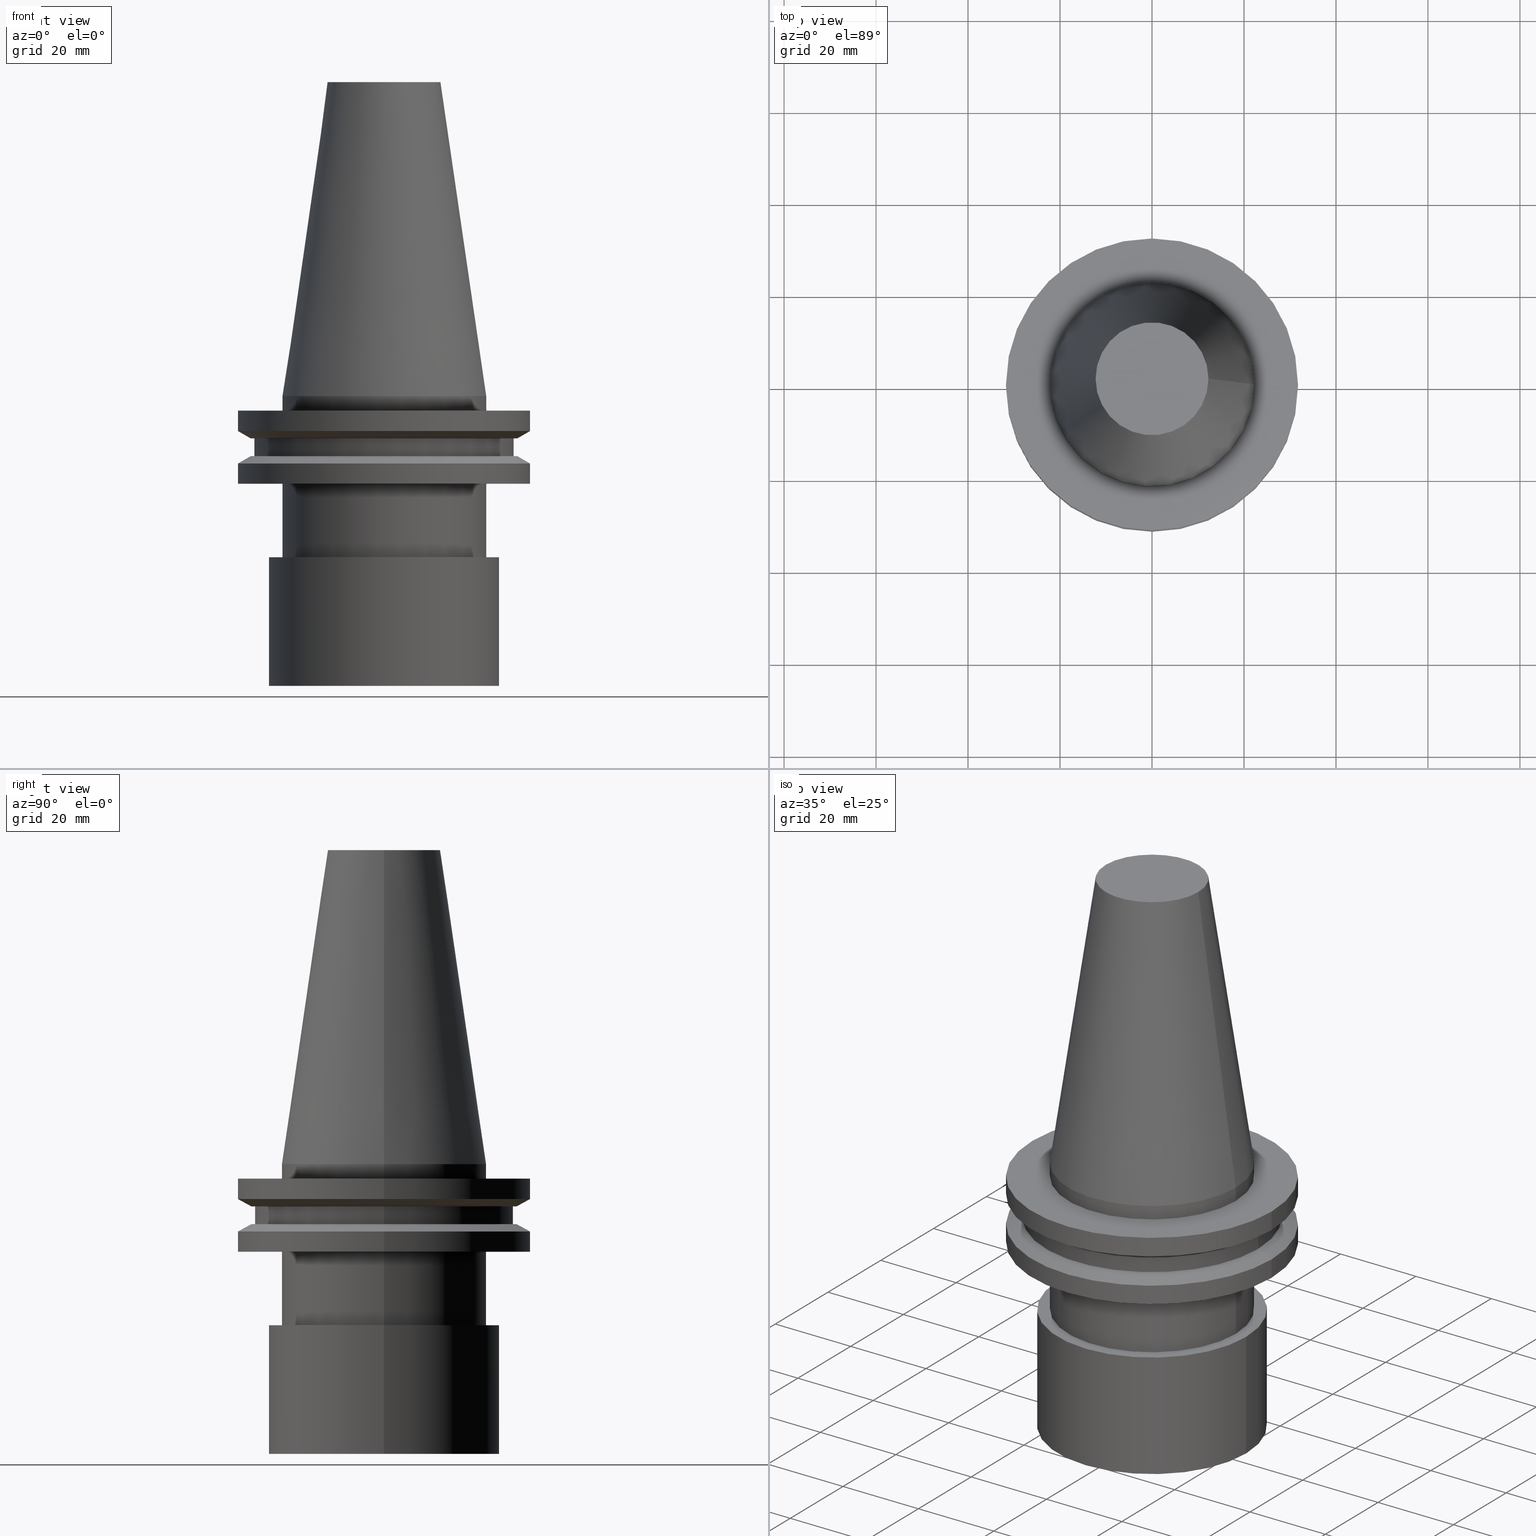
[diagram: canonical four-view strip — front | top / right | iso, engineering-drawing reading convention]
A machine part, canonical four-view strip (front | top / right | iso — engineering-drawing reading convention). The complete STEP part file that produces these views, byte-faithful:
ISO-10303-21;
HEADER;
FILE_DESCRIPTION (( 'STEP AP203' ),
    '1' );
FILE_NAME ('11.326.851.stp',
    '2022-03-09T15:06:53',
    ( '' ),
    ( '' ),
    'SwSTEP 2.0',
    'SolidWorks 2021',
    '' );
FILE_SCHEMA (( 'CONFIG_CONTROL_DESIGN' ));
ENDSEC;

DATA;
#1 = VERTEX_POINT ( 'NONE', #59 ) ;
#2 = VERTEX_POINT ( 'NONE', #281 ) ;
#3 = PLANE ( 'NONE',  #331 ) ;
#4 = ORIENTED_EDGE ( 'NONE', *, *, #256, .T. ) ;
#5 = AXIS2_PLACEMENT_3D ( 'NONE', #165, #194, #306 ) ;
#6 = CARTESIAN_POINT ( 'NONE',  ( 0.000000000000000000, 0.000000000000000000, 68.25000000000000000 ) ) ;
#7 = ADVANCED_FACE ( 'NONE', ( #39, #158 ), #13, .T. ) ;
#8 = DIRECTION ( 'NONE',  ( -1.000000000000000000, 0.000000000000000000, 0.000000000000000000 ) ) ;
#9 = CARTESIAN_POINT ( 'NONE',  ( 0.000000000000000000, 0.000000000000000000, 0.000000000000000000 ) ) ;
#10 =( NAMED_UNIT ( * ) PLANE_ANGLE_UNIT ( ) SI_UNIT ( $, .RADIAN. ) );
#11 = EDGE_LOOP ( 'NONE', ( #348 ) ) ;
#12 = DIRECTION ( 'NONE',  ( 1.000000000000000000, 0.000000000000000000, 0.000000000000000000 ) ) ;
#13 = CYLINDRICAL_SURFACE ( 'NONE', #388, 28.17999999999999972 ) ;
#14 = CARTESIAN_POINT ( 'NONE',  ( 0.000000000000000000, 0.000000000000000000, -13.05499999999999794 ) ) ;
#15 = DIRECTION ( 'NONE',  ( 1.000000000000000000, 0.000000000000000000, 0.000000000000000000 ) ) ;
#16 = EDGE_CURVE ( 'NONE', #26, #26, #93, .T. ) ;
#17 = SECURITY_CLASSIFICATION ( '', '', #338 ) ;
#18 = FACE_OUTER_BOUND ( 'NONE', #280, .T. ) ;
#19 = EDGE_LOOP ( 'NONE', ( #322 ) ) ;
#20 = PERSON_AND_ORGANIZATION ( #37, #111 ) ;
#21 = ADVANCED_FACE ( 'NONE', ( #32, #186 ), #218, .T. ) ;
#22 = CARTESIAN_POINT ( 'NONE',  ( 0.000000000000000000, 0.000000000000000000, -13.05499999999999794 ) ) ;
#23 =( NAMED_UNIT ( * ) SI_UNIT ( $, .STERADIAN. ) SOLID_ANGLE_UNIT ( ) );
#24 = FACE_OUTER_BOUND ( 'NONE', #201, .T. ) ;
#25 = CIRCLE ( 'NONE', #311, 31.74999999999999289 ) ;
#26 = VERTEX_POINT ( 'NONE', #51 ) ;
#27 = FACE_OUTER_BOUND ( 'NONE', #171, .T. ) ;
#28 = DIRECTION ( 'NONE',  ( -0.000000000000000000, -0.000000000000000000, 1.000000000000000000 ) ) ;
#29 = AXIS2_PLACEMENT_3D ( 'NONE', #146, #120, #324 ) ;
#30 = APPROVAL_ROLE ( '' ) ;
#31 = AXIS2_PLACEMENT_3D ( 'NONE', #150, #342, #394 ) ;
#32 = FACE_BOUND ( 'NONE', #65, .T. ) ;
#33 = DIRECTION ( 'NONE',  ( 0.000000000000000000, 0.000000000000000000, -1.000000000000000000 ) ) ;
#34 = APPROVAL_STATUS ( 'not_yet_approved' ) ;
#35 = EDGE_LOOP ( 'NONE', ( #240 ) ) ;
#36 = CYLINDRICAL_SURFACE ( 'NONE', #172, 31.75000000000000000 ) ;
#37 = PERSON ( 'UNSPECIFIED', 'UNSPECIFIED', 'UNSPECIFIED', ('UNSPECIFIED'), ('UNSPECIFIED'), ('UNSPECIFIED') ) ;
#38 = AXIS2_PLACEMENT_3D ( 'NONE', #378, #28, #210 ) ;
#39 = FACE_OUTER_BOUND ( 'NONE', #370, .T. ) ;
#40 = AXIS2_PLACEMENT_3D ( 'NONE', #118, #347, #61 ) ;
#41 = APPROVAL_PERSON_ORGANIZATION ( #216, #238, #30 ) ;
#42 = DIRECTION ( 'NONE',  ( -0.000000000000000000, -0.000000000000000000, 1.000000000000000000 ) ) ;
#43 = DIRECTION ( 'NONE',  ( -0.000000000000000000, -0.000000000000000000, 1.000000000000000000 ) ) ;
#44 = AXIS2_PLACEMENT_3D ( 'NONE', #211, #274, #170 ) ;
#45 = DIRECTION ( 'NONE',  ( -0.000000000000000000, -0.000000000000000000, 1.000000000000000000 ) ) ;
#46 = COORDINATED_UNIVERSAL_TIME_OFFSET ( 6, 0, .BEHIND. ) ;
#47 = CARTESIAN_POINT ( 'NONE',  ( 0.000000000000000000, 0.000000000000000000, -35.04999999999999716 ) ) ;
#48 = COORDINATED_UNIVERSAL_TIME_OFFSET ( 6, 0, .BEHIND. ) ;
#49 = PLANE ( 'NONE',  #196 ) ;
#50 = ADVANCED_FACE ( 'NONE', ( #60, #178 ), #36, .T. ) ;
#51 = CARTESIAN_POINT ( 'NONE',  ( 22.22500000000000142, 0.000000000000000000, -3.174999999999997158 ) ) ;
#52 = ADVANCED_FACE ( 'NONE', ( #253, #316 ), #276, .T. ) ;
#53 = CIRCLE ( 'NONE', #287, 22.22500000000000142 ) ;
#54 = DIRECTION ( 'NONE',  ( 1.000000000000000000, 0.000000000000000000, 0.000000000000000000 ) ) ;
#55 = EDGE_LOOP ( 'NONE', ( #291 ) ) ;
#56 = DIRECTION ( 'NONE',  ( -1.000000000000000000, 0.000000000000000000, -0.000000000000000000 ) ) ;
#57 = ORIENTED_EDGE ( 'NONE', *, *, #16, .F. ) ;
#58 = FACE_BOUND ( 'NONE', #92, .T. ) ;
#59 = CARTESIAN_POINT ( 'NONE',  ( 24.99999999999999289, 0.000000000000000000, -63.00000000000000000 ) ) ;
#60 = FACE_OUTER_BOUND ( 'NONE', #89, .T. ) ;
#61 = DIRECTION ( 'NONE',  ( 1.000000000000000000, 0.000000000000000000, 0.000000000000000000 ) ) ;
#62 = CIRCLE ( 'NONE', #110, 28.17999999999999972 ) ;
#63 =( GEOMETRIC_REPRESENTATION_CONTEXT ( 3 ) GLOBAL_UNCERTAINTY_ASSIGNED_CONTEXT ( ( #258 ) ) GLOBAL_UNIT_ASSIGNED_CONTEXT ( ( #305, #10, #23 ) ) REPRESENTATION_CONTEXT ( 'NONE', 'WORKASPACE' ) );
#64 = ORIENTED_EDGE ( 'NONE', *, *, #16, .T. ) ;
#65 = EDGE_LOOP ( 'NONE', ( #246 ) ) ;
#66 = DIRECTION ( 'NONE',  ( 1.000000000000000000, 0.000000000000000000, 0.000000000000000000 ) ) ;
#67 = CARTESIAN_POINT ( 'NONE',  ( 28.97919780457008088, 0.000000000000000000, -13.05499999999999794 ) ) ;
#68 = CLOSED_SHELL ( 'NONE', ( #21, #223, #101, #252, #50, #336, #284, #7, #266, #387, #174, #350, #212, #236, #52, #126 ) ) ;
#69 = CYLINDRICAL_SURFACE ( 'NONE', #181, 22.22500000000000142 ) ;
#70 = AXIS2_PLACEMENT_3D ( 'NONE', #47, #303, #264 ) ;
#71 = DIRECTION ( 'NONE',  ( 1.000000000000000000, 0.000000000000000000, 0.000000000000000000 ) ) ;
#72 = APPLICATION_CONTEXT ( 'configuration controlled 3d designs of mechanical parts and assemblies' ) ;
#73 = VERTEX_POINT ( 'NONE', #164 ) ;
#74 = AXIS2_PLACEMENT_3D ( 'NONE', #82, #191, #100 ) ;
#75 = AXIS2_PLACEMENT_3D ( 'NONE', #310, #85, #206 ) ;
#76 = CYLINDRICAL_SURFACE ( 'NONE', #359, 22.22500000000000142 ) ;
#77 = EDGE_CURVE ( 'NONE', #144, #144, #87, .T. ) ;
#78 = DIRECTION ( 'NONE',  ( 0.000000000000000000, 0.000000000000000000, 1.000000000000000000 ) ) ;
#79 = DIRECTION ( 'NONE',  ( -0.000000000000000000, -0.000000000000000000, 1.000000000000000000 ) ) ;
#80 = APPLICATION_CONTEXT ( 'configuration controlled 3d designs of mechanical parts and assemblies' ) ;
#81 = CC_DESIGN_APPROVAL ( #261, ( #202 ) ) ;
#82 = CARTESIAN_POINT ( 'NONE',  ( 0.000000000000000000, 0.000000000000000000, 68.25000000000000000 ) ) ;
#83 = EDGE_CURVE ( 'NONE', #2, #2, #318, .T. ) ;
#84 = EDGE_CURVE ( 'NONE', #358, #358, #230, .T. ) ;
#85 = DIRECTION ( 'NONE',  ( -0.000000000000000000, -0.000000000000000000, 1.000000000000000000 ) ) ;
#86 = EDGE_LOOP ( 'NONE', ( #128 ) ) ;
#87 = CIRCLE ( 'NONE', #326, 31.75000000000000000 ) ;
#88 = CIRCLE ( 'NONE', #288, 28.97919780457007732 ) ;
#89 = EDGE_LOOP ( 'NONE', ( #273 ) ) ;
#90 = CARTESIAN_POINT ( 'NONE',  ( 0.000000000000000000, 0.000000000000000000, 0.000000000000000000 ) ) ;
#91 = CARTESIAN_POINT ( 'NONE',  ( 0.000000000000000000, 0.000000000000000000, 0.000000000000000000 ) ) ;
#92 = EDGE_LOOP ( 'NONE', ( #313 ) ) ;
#93 = CIRCLE ( 'NONE', #38, 22.22500000000000142 ) ;
#94 = EDGE_CURVE ( 'NONE', #292, #292, #147, .T. ) ;
#95 = ORIENTED_EDGE ( 'NONE', *, *, #256, .F. ) ;
#96 = EDGE_LOOP ( 'NONE', ( #392 ) ) ;
#97 = CARTESIAN_POINT ( 'NONE',  ( 28.17999999999999972, 0.000000000000000000, -13.05499999999999794 ) ) ;
#98 = DIRECTION ( 'NONE',  ( 0.000000000000000000, -0.000000000000000000, 1.000000000000000000 ) ) ;
#99 = PLANE ( 'NONE',  #225 ) ;
#100 = DIRECTION ( 'NONE',  ( 1.000000000000000000, 0.000000000000000000, 0.000000000000000000 ) ) ;
#101 = ADVANCED_FACE ( 'NONE', ( #24, #357 ), #69, .T. ) ;
#102 = AXIS2_PLACEMENT_3D ( 'NONE', #341, #278, #8 ) ;
#103 = PRODUCT_DEFINITION ( 'UNKNOWN', '', #202, #371 ) ;
#104 = FACE_OUTER_BOUND ( 'NONE', #346, .T. ) ;
#105 = PERSON_AND_ORGANIZATION_ROLE ( 'creator' ) ;
#106 = CARTESIAN_POINT ( 'NONE',  ( 0.000000000000000000, 0.000000000000000000, -9.204999999999991189 ) ) ;
#107 = CC_DESIGN_DATE_AND_TIME_ASSIGNMENT ( #290, #293, ( #17 ) ) ;
#108 = ORIENTED_EDGE ( 'NONE', *, *, #192, .T. ) ;
#109 = CARTESIAN_POINT ( 'NONE',  ( 31.75000000000000000, 0.000000000000000000, -7.605276606597335842 ) ) ;
#110 = AXIS2_PLACEMENT_3D ( 'NONE', #106, #141, #232 ) ;
#111 = ORGANIZATION ( 'UNSPECIFIED', 'UNSPECIFIED', '' ) ;
#112 = CARTESIAN_POINT ( 'NONE',  ( 0.000000000000000000, 0.000000000000000000, 68.25000000000000000 ) ) ;
#113 = DIRECTION ( 'NONE',  ( 1.000000000000000000, 0.000000000000000000, 0.000000000000000000 ) ) ;
#114 = ORIENTED_EDGE ( 'NONE', *, *, #382, .T. ) ;
#115 = DIRECTION ( 'NONE',  ( 0.000000000000000000, 0.000000000000000000, -1.000000000000000000 ) ) ;
#116 = ORIENTED_EDGE ( 'NONE', *, *, #83, .T. ) ;
#117 = EDGE_CURVE ( 'NONE', #380, #380, #142, .T. ) ;
#118 = CARTESIAN_POINT ( 'NONE',  ( 0.000000000000000000, 0.000000000000000000, -7.605276606597335842 ) ) ;
#119 = COORDINATED_UNIVERSAL_TIME_OFFSET ( 6, 0, .BEHIND. ) ;
#120 = DIRECTION ( 'NONE',  ( 0.000000000000000000, 0.000000000000000000, -1.000000000000000000 ) ) ;
#121 = FACE_BOUND ( 'NONE', #312, .T. ) ;
#122 = DATE_TIME_ROLE ( 'creation_date' ) ;
#123 = EDGE_LOOP ( 'NONE', ( #64 ) ) ;
#124 = PERSON_AND_ORGANIZATION_ROLE ( 'creator' ) ;
#125 = EDGE_LOOP ( 'NONE', ( #114 ) ) ;
#126 = ADVANCED_FACE ( 'NONE', ( #18 ), #49, .F. ) ;
#127 = CIRCLE ( 'NONE', #44, 24.99999999999999289 ) ;
#128 = ORIENTED_EDGE ( 'NONE', *, *, #315, .T. ) ;
#129 = APPROVAL_DATE_TIME ( #155, #229 ) ;
#130 = DIRECTION ( 'NONE',  ( -0.000000000000000000, -0.000000000000000000, 1.000000000000000000 ) ) ;
#131 = DIRECTION ( 'NONE',  ( -0.000000000000000000, -0.000000000000000000, 1.000000000000000000 ) ) ;
#132 = CARTESIAN_POINT ( 'NONE',  ( 28.17999999999999972, 0.000000000000000000, -9.204999999999991189 ) ) ;
#133 = AXIS2_PLACEMENT_3D ( 'NONE', #22, #131, #386 ) ;
#134 = CARTESIAN_POINT ( 'NONE',  ( 0.000000000000000000, 24.99999999999999289, -63.00000000000000000 ) ) ;
#135 = CARTESIAN_POINT ( 'NONE',  ( 22.22500000000000142, 0.000000000000000000, -19.04999999999999716 ) ) ;
#136 = CARTESIAN_POINT ( 'NONE',  ( 0.000000000000000000, 0.000000000000000000, -19.04999999999999716 ) ) ;
#137 = COORDINATED_UNIVERSAL_TIME_OFFSET ( 6, 0, .BEHIND. ) ;
#138 = DIRECTION ( 'NONE',  ( 1.000000000000000000, 0.000000000000000000, 0.000000000000000000 ) ) ;
#139 = ORIENTED_EDGE ( 'NONE', *, *, #260, .F. ) ;
#140 = APPLICATION_PROTOCOL_DEFINITION ( 'international standard', 'config_control_design', 1994, #80 ) ;
#141 = DIRECTION ( 'NONE',  ( -0.000000000000000000, -0.000000000000000000, 1.000000000000000000 ) ) ;
#142 = CIRCLE ( 'NONE', #133, 28.97919780457008088 ) ;
#143 = APPROVAL_STATUS ( 'not_yet_approved' ) ;
#144 = VERTEX_POINT ( 'NONE', #272 ) ;
#145 = FACE_OUTER_BOUND ( 'NONE', #207, .T. ) ;
#146 = CARTESIAN_POINT ( 'NONE',  ( 0.000000000000000000, 0.000000000000000000, 0.000000000000000000 ) ) ;
#147 = CIRCLE ( 'NONE', #300, 28.17999999999999972 ) ;
#148 = DATE_AND_TIME ( #247, #337 ) ;
#149 = EDGE_LOOP ( 'NONE', ( #153 ) ) ;
#150 = CARTESIAN_POINT ( 'NONE',  ( 0.000000000000000000, 0.000000000000000000, -63.00000000000000000 ) ) ;
#151 = PRODUCT_RELATED_PRODUCT_CATEGORY ( 'detail', '', ( #355 ) ) ;
#152 = APPROVAL_DATE_TIME ( #148, #238 ) ;
#153 = ORIENTED_EDGE ( 'NONE', *, *, #260, .T. ) ;
#154 = PRODUCT_DEFINITION_SHAPE ( 'NONE', 'NONE',  #103 ) ;
#155 = DATE_AND_TIME ( #285, #173 ) ;
#156 = DIRECTION ( 'NONE',  ( -0.000000000000000000, -0.000000000000000000, 1.000000000000000000 ) ) ;
#157 = AXIS2_PLACEMENT_3D ( 'NONE', #112, #235, #54 ) ;
#158 = FACE_OUTER_BOUND ( 'NONE', #352, .T. ) ;
#159 = CARTESIAN_POINT ( 'NONE',  ( 0.000000000000000000, 0.000000000000000000, 68.25000000000000000 ) ) ;
#160 = CYLINDRICAL_SURFACE ( 'NONE', #74, 31.75000000000000000 ) ;
#161 = AXIS2_PLACEMENT_3D ( 'NONE', #200, #361, #71 ) ;
#162 = APPROVAL_PERSON_ORGANIZATION ( #393, #261, #340 ) ;
#163 = MANIFOLD_SOLID_BREP ( 'CKB', #68 ) ;
#164 = CARTESIAN_POINT ( 'NONE',  ( 31.74999999999999289, 0.000000000000000000, -19.04999999999999716 ) ) ;
#165 = CARTESIAN_POINT ( 'NONE',  ( 0.000000000000000000, 12.27178102086201150, 68.25000000000000000 ) ) ;
#166 = CALENDAR_DATE ( 2022, 9, 3 ) ;
#167 = PLANE ( 'NONE',  #161 ) ;
#168 = FACE_OUTER_BOUND ( 'NONE', #123, .T. ) ;
#169 = CARTESIAN_POINT ( 'NONE',  ( 24.99999999999999289, 0.000000000000000000, -35.04999999999999716 ) ) ;
#170 = DIRECTION ( 'NONE',  ( 1.000000000000000000, 0.000000000000000000, 0.000000000000000000 ) ) ;
#171 = EDGE_LOOP ( 'NONE', ( #325 ) ) ;
#172 = AXIS2_PLACEMENT_3D ( 'NONE', #6, #156, #66 ) ;
#173 = LOCAL_TIME ( 9, 6, 53.00000000000000000, #295 ) ;
#174 = ADVANCED_FACE ( 'NONE', ( #391, #339 ), #160, .T. ) ;
#175 = FACE_OUTER_BOUND ( 'NONE', #354, .T. ) ;
#176 = ORIENTED_EDGE ( 'NONE', *, *, #376, .F. ) ;
#177 = DIRECTION ( 'NONE',  ( -1.000000000000000000, 0.000000000000000000, -0.000000000000000000 ) ) ;
#178 = FACE_OUTER_BOUND ( 'NONE', #220, .T. ) ;
#179 = PERSON_AND_ORGANIZATION_ROLE ( 'classification_officer' ) ;
#180 = CARTESIAN_POINT ( 'NONE',  ( 0.000000000000000000, 0.000000000000000000, -14.65472339340266572 ) ) ;
#181 = AXIS2_PLACEMENT_3D ( 'NONE', #329, #42, #204 ) ;
#182 = PLANE ( 'NONE',  #250 ) ;
#183 = LOCAL_TIME ( 9, 6, 53.00000000000000000, #137 ) ;
#184 = DIRECTION ( 'NONE',  ( 1.000000000000000000, 0.000000000000000000, 0.000000000000000000 ) ) ;
#185 = EDGE_LOOP ( 'NONE', ( #217 ) ) ;
#186 = FACE_OUTER_BOUND ( 'NONE', #317, .T. ) ;
#187 = CARTESIAN_POINT ( 'NONE',  ( 0.000000000000000000, 0.000000000000000000, -3.174999999999997158 ) ) ;
#188 = VERTEX_POINT ( 'NONE', #132 ) ;
#189 = EDGE_CURVE ( 'NONE', #188, #188, #62, .T. ) ;
#190 = APPROVAL_STATUS ( 'not_yet_approved' ) ;
#191 = DIRECTION ( 'NONE',  ( -0.000000000000000000, -0.000000000000000000, 1.000000000000000000 ) ) ;
#192 = EDGE_CURVE ( 'NONE', #73, #73, #25, .T. ) ;
#193 = VERTEX_POINT ( 'NONE', #169 ) ;
#194 = DIRECTION ( 'NONE',  ( 0.000000000000000000, 0.000000000000000000, -1.000000000000000000 ) ) ;
#195 = VERTEX_POINT ( 'NONE', #135 ) ;
#196 = AXIS2_PLACEMENT_3D ( 'NONE', #134, #98, #262 ) ;
#197 = CIRCLE ( 'NONE', #70, 22.22500000000000142 ) ;
#198 = VERTEX_POINT ( 'NONE', #328 ) ;
#199 = DIRECTION ( 'NONE',  ( 1.000000000000000000, 0.000000000000000000, 0.000000000000000000 ) ) ;
#200 = CARTESIAN_POINT ( 'NONE',  ( 0.000000000000000000, 31.74999999999999289, -19.04999999999999716 ) ) ;
#201 = EDGE_LOOP ( 'NONE', ( #270 ) ) ;
#202 = PRODUCT_DEFINITION_FORMATION_WITH_SPECIFIED_SOURCE ( 'ANY', '', #355, .NOT_KNOWN. ) ;
#203 = PERSON_AND_ORGANIZATION_ROLE ( 'design_supplier' ) ;
#204 = DIRECTION ( 'NONE',  ( 1.000000000000000000, 0.000000000000000000, 0.000000000000000000 ) ) ;
#205 = MECHANICAL_CONTEXT ( 'NONE', #80, 'mechanical' ) ;
#206 = DIRECTION ( 'NONE',  ( 1.000000000000000000, 0.000000000000000000, 0.000000000000000000 ) ) ;
#207 = EDGE_LOOP ( 'NONE', ( #275 ) ) ;
#208 = AXIS2_PLACEMENT_3D ( 'NONE', #90, #214, #286 ) ;
#209 = CONICAL_SURFACE ( 'NONE', #102, 31.75000000000000000, 1.047197551196597853 ) ;
#210 = DIRECTION ( 'NONE',  ( 1.000000000000000000, 0.000000000000000000, 0.000000000000000000 ) ) ;
#211 = CARTESIAN_POINT ( 'NONE',  ( 0.000000000000000000, 0.000000000000000000, -35.04999999999999716 ) ) ;
#212 = ADVANCED_FACE ( 'NONE', ( #364, #168 ), #76, .T. ) ;
#213 = DATE_AND_TIME ( #279, #183 ) ;
#214 = DIRECTION ( 'NONE',  ( -0.000000000000000000, -0.000000000000000000, 1.000000000000000000 ) ) ;
#215 = FACE_BOUND ( 'NONE', #308, .T. ) ;
#216 = PERSON_AND_ORGANIZATION ( #37, #111 ) ;
#217 = ORIENTED_EDGE ( 'NONE', *, *, #84, .F. ) ;
#218 = CONICAL_SURFACE ( 'NONE', #29, 22.22500000000000142, 0.1448138465474119174 ) ;
#219 = AXIS2_PLACEMENT_3D ( 'NONE', #241, #344, #113 ) ;
#220 = EDGE_LOOP ( 'NONE', ( #108 ) ) ;
#221 = DIRECTION ( 'NONE',  ( -0.000000000000000000, -0.000000000000000000, 1.000000000000000000 ) ) ;
#222 = EDGE_CURVE ( 'NONE', #195, #195, #53, .T. ) ;
#223 = ADVANCED_FACE ( 'NONE', ( #367 ), #294, .F. ) ;
#224 = DIRECTION ( 'NONE',  ( 1.000000000000000000, 0.000000000000000000, 0.000000000000000000 ) ) ;
#225 = AXIS2_PLACEMENT_3D ( 'NONE', #299, #226, #389 ) ;
#226 = DIRECTION ( 'NONE',  ( 0.000000000000000000, 0.000000000000000000, -1.000000000000000000 ) ) ;
#227 = SHAPE_DEFINITION_REPRESENTATION ( #154, #254 ) ;
#228 = DIRECTION ( 'NONE',  ( -0.000000000000000000, -0.000000000000000000, 1.000000000000000000 ) ) ;
#229 = APPROVAL ( #190, 'UNSPECIFIED' ) ;
#230 = CIRCLE ( 'NONE', #330, 31.75000000000000000 ) ;
#231 = CARTESIAN_POINT ( 'NONE',  ( 22.22500000000000142, 0.000000000000000000, -35.04999999999999716 ) ) ;
#232 = DIRECTION ( 'NONE',  ( 1.000000000000000000, 0.000000000000000000, 0.000000000000000000 ) ) ;
#233 = FACE_OUTER_BOUND ( 'NONE', #381, .T. ) ;
#234 = VERTEX_POINT ( 'NONE', #351 ) ;
#235 = DIRECTION ( 'NONE',  ( -0.000000000000000000, -0.000000000000000000, 1.000000000000000000 ) ) ;
#236 = ADVANCED_FACE ( 'NONE', ( #255, #384 ), #99, .F. ) ;
#237 = ORIENTED_EDGE ( 'NONE', *, *, #94, .T. ) ;
#238 = APPROVAL ( #34, 'UNSPECIFIED' ) ;
#239 = CARTESIAN_POINT ( 'NONE',  ( 0.000000000000000000, 28.17999999999999972, -13.05499999999999794 ) ) ;
#240 = ORIENTED_EDGE ( 'NONE', *, *, #84, .T. ) ;
#241 = CARTESIAN_POINT ( 'NONE',  ( 0.000000000000000000, 28.97919780457007732, -9.204999999999996518 ) ) ;
#242 = PERSON_AND_ORGANIZATION ( #37, #111 ) ;
#243 = CARTESIAN_POINT ( 'NONE',  ( 0.000000000000000000, 0.000000000000000000, 68.25000000000000000 ) ) ;
#244 = PLANE ( 'NONE',  #219 ) ;
#245 = CC_DESIGN_PERSON_AND_ORGANIZATION_ASSIGNMENT ( #366, #203, ( #202 ) ) ;
#246 = ORIENTED_EDGE ( 'NONE', *, *, #382, .F. ) ;
#247 = CALENDAR_DATE ( 2022, 9, 3 ) ;
#248 = DIRECTION ( 'NONE',  ( 1.000000000000000000, 0.000000000000000000, 0.000000000000000000 ) ) ;
#249 = AXIS2_PLACEMENT_3D ( 'NONE', #9, #251, #379 ) ;
#250 = AXIS2_PLACEMENT_3D ( 'NONE', #320, #33, #177 ) ;
#251 = DIRECTION ( 'NONE',  ( -0.000000000000000000, -0.000000000000000000, 1.000000000000000000 ) ) ;
#252 = ADVANCED_FACE ( 'NONE', ( #104, #365 ), #167, .F. ) ;
#253 = FACE_OUTER_BOUND ( 'NONE', #55, .T. ) ;
#254 = ADVANCED_BREP_SHAPE_REPRESENTATION ( '11.326.851', ( #163, #297 ), #63 ) ;
#255 = FACE_BOUND ( 'NONE', #372, .T. ) ;
#256 = EDGE_CURVE ( 'NONE', #198, #198, #88, .T. ) ;
#257 = DIRECTION ( 'NONE',  ( -0.000000000000000000, -0.000000000000000000, 1.000000000000000000 ) ) ;
#258 = UNCERTAINTY_MEASURE_WITH_UNIT (LENGTH_MEASURE( 1.000000000000000082E-05 ), #305, 'distance_accuracy_value', 'NONE');
#259 = CC_DESIGN_APPROVAL ( #229, ( #17 ) ) ;
#260 = EDGE_CURVE ( 'NONE', #332, #332, #197, .T. ) ;
#261 = APPROVAL ( #143, 'UNSPECIFIED' ) ;
#262 = DIRECTION ( 'NONE',  ( 1.000000000000000000, 0.000000000000000000, 0.000000000000000000 ) ) ;
#263 = APPROVAL_DATE_TIME ( #302, #261 ) ;
#264 = DIRECTION ( 'NONE',  ( 1.000000000000000000, 0.000000000000000000, 0.000000000000000000 ) ) ;
#265 = EDGE_LOOP ( 'NONE', ( #4 ) ) ;
#266 = ADVANCED_FACE ( 'NONE', ( #233, #215 ), #244, .F. ) ;
#267 = CARTESIAN_POINT ( 'NONE',  ( 0.000000000000000000, 0.000000000000000000, -19.04999999999999716 ) ) ;
#268 = CIRCLE ( 'NONE', #40, 31.75000000000000000 ) ;
#269 = CIRCLE ( 'NONE', #157, 12.27178102086201150 ) ;
#270 = ORIENTED_EDGE ( 'NONE', *, *, #222, .F. ) ;
#271 = PERSON_AND_ORGANIZATION_ROLE ( 'design_owner' ) ;
#272 = CARTESIAN_POINT ( 'NONE',  ( 31.75000000000000000, 0.000000000000000000, -14.65472339340266572 ) ) ;
#273 = ORIENTED_EDGE ( 'NONE', *, *, #77, .F. ) ;
#274 = DIRECTION ( 'NONE',  ( -0.000000000000000000, -0.000000000000000000, 1.000000000000000000 ) ) ;
#275 = ORIENTED_EDGE ( 'NONE', *, *, #77, .T. ) ;
#276 = CYLINDRICAL_SURFACE ( 'NONE', #208, 24.99999999999999289 ) ;
#277 = LOCAL_TIME ( 9, 6, 53.00000000000000000, #46 ) ;
#278 = DIRECTION ( 'NONE',  ( 0.000000000000000000, 0.000000000000000000, -1.000000000000000000 ) ) ;
#279 = CALENDAR_DATE ( 2022, 9, 3 ) ;
#280 = EDGE_LOOP ( 'NONE', ( #176 ) ) ;
#281 = CARTESIAN_POINT ( 'NONE',  ( 22.22500000000000142, 0.000000000000000000, 0.000000000000000000 ) ) ;
#282 = ORIENTED_EDGE ( 'NONE', *, *, #94, .F. ) ;
#283 = CARTESIAN_POINT ( 'NONE',  ( 31.75000000000000000, 0.000000000000000000, -3.174999999999997158 ) ) ;
#284 = ADVANCED_FACE ( 'NONE', ( #314, #27 ), #3, .F. ) ;
#285 = CALENDAR_DATE ( 2022, 9, 3 ) ;
#286 = DIRECTION ( 'NONE',  ( 1.000000000000000000, 0.000000000000000000, 0.000000000000000000 ) ) ;
#287 = AXIS2_PLACEMENT_3D ( 'NONE', #136, #79, #138 ) ;
#288 = AXIS2_PLACEMENT_3D ( 'NONE', #335, #43, #296 ) ;
#289 = CONICAL_SURFACE ( 'NONE', #75, 28.97919780457007732, 1.047197551196598297 ) ;
#290 = DATE_AND_TIME ( #298, #360 ) ;
#291 = ORIENTED_EDGE ( 'NONE', *, *, #304, .F. ) ;
#292 = VERTEX_POINT ( 'NONE', #97 ) ;
#293 = DATE_TIME_ROLE ( 'classification_date' ) ;
#294 = PLANE ( 'NONE',  #5 ) ;
#295 = COORDINATED_UNIVERSAL_TIME_OFFSET ( 6, 0, .BEHIND. ) ;
#296 = DIRECTION ( 'NONE',  ( 1.000000000000000000, 0.000000000000000000, 0.000000000000000000 ) ) ;
#297 = AXIS2_PLACEMENT_3D ( 'NONE', #91, #78, #184 ) ;
#298 = CALENDAR_DATE ( 2022, 9, 3 ) ;
#299 = CARTESIAN_POINT ( 'NONE',  ( 0.000000000000000000, 0.000000000000000000, -35.04999999999999716 ) ) ;
#300 = AXIS2_PLACEMENT_3D ( 'NONE', #14, #257, #224 ) ;
#301 = EDGE_LOOP ( 'NONE', ( #282 ) ) ;
#302 = DATE_AND_TIME ( #166, #277 ) ;
#303 = DIRECTION ( 'NONE',  ( -0.000000000000000000, -0.000000000000000000, 1.000000000000000000 ) ) ;
#304 = EDGE_CURVE ( 'NONE', #193, #193, #127, .T. ) ;
#305 =( LENGTH_UNIT ( ) NAMED_UNIT ( * ) SI_UNIT ( .MILLI., .METRE. ) );
#306 = DIRECTION ( 'NONE',  ( -1.000000000000000000, 0.000000000000000000, -0.000000000000000000 ) ) ;
#307 = CC_DESIGN_PERSON_AND_ORGANIZATION_ASSIGNMENT ( #242, #179, ( #17 ) ) ;
#308 = EDGE_LOOP ( 'NONE', ( #343 ) ) ;
#309 = VERTEX_POINT ( 'NONE', #109 ) ;
#310 = CARTESIAN_POINT ( 'NONE',  ( 0.000000000000000000, 0.000000000000000000, -9.205000000000005400 ) ) ;
#311 = AXIS2_PLACEMENT_3D ( 'NONE', #267, #228, #327 ) ;
#312 = EDGE_LOOP ( 'NONE', ( #57 ) ) ;
#313 = ORIENTED_EDGE ( 'NONE', *, *, #117, .F. ) ;
#314 = FACE_BOUND ( 'NONE', #301, .T. ) ;
#315 = EDGE_CURVE ( 'NONE', #309, #309, #268, .T. ) ;
#316 = FACE_OUTER_BOUND ( 'NONE', #11, .T. ) ;
#317 = EDGE_LOOP ( 'NONE', ( #116 ) ) ;
#318 = CIRCLE ( 'NONE', #249, 22.22500000000000142 ) ;
#319 = APPROVAL_PERSON_ORGANIZATION ( #356, #229, #323 ) ;
#320 = CARTESIAN_POINT ( 'NONE',  ( 0.000000000000000000, 31.75000000000000000, -3.174999999999993605 ) ) ;
#321 = APPLICATION_PROTOCOL_DEFINITION ( 'international standard', 'config_control_design', 1994, #72 ) ;
#322 = ORIENTED_EDGE ( 'NONE', *, *, #222, .T. ) ;
#323 = APPROVAL_ROLE ( '' ) ;
#324 = DIRECTION ( 'NONE',  ( -1.000000000000000000, 0.000000000000000000, 0.000000000000000000 ) ) ;
#325 = ORIENTED_EDGE ( 'NONE', *, *, #117, .T. ) ;
#326 = AXIS2_PLACEMENT_3D ( 'NONE', #180, #221, #12 ) ;
#327 = DIRECTION ( 'NONE',  ( 1.000000000000000000, 0.000000000000000000, 0.000000000000000000 ) ) ;
#328 = CARTESIAN_POINT ( 'NONE',  ( 28.97919780457007732, 0.000000000000000000, -9.205000000000005400 ) ) ;
#329 = CARTESIAN_POINT ( 'NONE',  ( 0.000000000000000000, 0.000000000000000000, 68.25000000000000000 ) ) ;
#330 = AXIS2_PLACEMENT_3D ( 'NONE', #187, #333, #15 ) ;
#331 = AXIS2_PLACEMENT_3D ( 'NONE', #239, #115, #56 ) ;
#332 = VERTEX_POINT ( 'NONE', #231 ) ;
#333 = DIRECTION ( 'NONE',  ( -0.000000000000000000, -0.000000000000000000, 1.000000000000000000 ) ) ;
#334 = EDGE_LOOP ( 'NONE', ( #377 ) ) ;
#335 = CARTESIAN_POINT ( 'NONE',  ( 0.000000000000000000, 0.000000000000000000, -9.205000000000005400 ) ) ;
#336 = ADVANCED_FACE ( 'NONE', ( #58, #145 ), #209, .T. ) ;
#337 = LOCAL_TIME ( 9, 6, 53.00000000000000000, #119 ) ;
#338 = SECURITY_CLASSIFICATION_LEVEL ( 'unclassified' ) ;
#339 = FACE_OUTER_BOUND ( 'NONE', #86, .T. ) ;
#340 = APPROVAL_ROLE ( '' ) ;
#341 = CARTESIAN_POINT ( 'NONE',  ( 0.000000000000000000, 0.000000000000000000, -14.65472339340266572 ) ) ;
#342 = DIRECTION ( 'NONE',  ( -0.000000000000000000, -0.000000000000000000, 1.000000000000000000 ) ) ;
#343 = ORIENTED_EDGE ( 'NONE', *, *, #189, .T. ) ;
#344 = DIRECTION ( 'NONE',  ( 0.000000000000000000, -0.000000000000000000, 1.000000000000000000 ) ) ;
#345 = CC_DESIGN_PERSON_AND_ORGANIZATION_ASSIGNMENT ( #20, #271, ( #355 ) ) ;
#346 = EDGE_LOOP ( 'NONE', ( #395 ) ) ;
#347 = DIRECTION ( 'NONE',  ( -0.000000000000000000, -0.000000000000000000, 1.000000000000000000 ) ) ;
#348 = ORIENTED_EDGE ( 'NONE', *, *, #376, .T. ) ;
#349 = FACE_OUTER_BOUND ( 'NONE', #35, .T. ) ;
#350 = ADVANCED_FACE ( 'NONE', ( #121, #349 ), #182, .F. ) ;
#351 = CARTESIAN_POINT ( 'NONE',  ( 12.27178102086201150, 0.000000000000000000, 68.25000000000000000 ) ) ;
#352 = EDGE_LOOP ( 'NONE', ( #237 ) ) ;
#353 = CC_DESIGN_SECURITY_CLASSIFICATION ( #17, ( #202 ) ) ;
#354 = EDGE_LOOP ( 'NONE', ( #375 ) ) ;
#355 = PRODUCT ( '11.326.851', '11.326.851', '', ( #205 ) ) ;
#356 = PERSON_AND_ORGANIZATION ( #37, #111 ) ;
#357 = FACE_OUTER_BOUND ( 'NONE', #149, .T. ) ;
#358 = VERTEX_POINT ( 'NONE', #283 ) ;
#359 = AXIS2_PLACEMENT_3D ( 'NONE', #159, #45, #199 ) ;
#360 = LOCAL_TIME ( 9, 6, 53.00000000000000000, #48 ) ;
#361 = DIRECTION ( 'NONE',  ( 0.000000000000000000, -0.000000000000000000, 1.000000000000000000 ) ) ;
#362 = CC_DESIGN_DATE_AND_TIME_ASSIGNMENT ( #213, #122, ( #103 ) ) ;
#363 = CIRCLE ( 'NONE', #31, 24.99999999999999289 ) ;
#364 = FACE_OUTER_BOUND ( 'NONE', #96, .T. ) ;
#365 = FACE_BOUND ( 'NONE', #19, .T. ) ;
#366 = PERSON_AND_ORGANIZATION ( #37, #111 ) ;
#367 = FACE_OUTER_BOUND ( 'NONE', #125, .T. ) ;
#368 = CC_DESIGN_PERSON_AND_ORGANIZATION_ASSIGNMENT ( #390, #105, ( #202 ) ) ;
#369 = FACE_BOUND ( 'NONE', #265, .T. ) ;
#370 = EDGE_LOOP ( 'NONE', ( #373 ) ) ;
#371 = DESIGN_CONTEXT ( 'detailed design', #72, 'design' ) ;
#372 = EDGE_LOOP ( 'NONE', ( #139 ) ) ;
#373 = ORIENTED_EDGE ( 'NONE', *, *, #189, .F. ) ;
#374 = PERSON_AND_ORGANIZATION ( #37, #111 ) ;
#375 = ORIENTED_EDGE ( 'NONE', *, *, #315, .F. ) ;
#376 = EDGE_CURVE ( 'NONE', #1, #1, #363, .T. ) ;
#377 = ORIENTED_EDGE ( 'NONE', *, *, #304, .T. ) ;
#378 = CARTESIAN_POINT ( 'NONE',  ( 0.000000000000000000, 0.000000000000000000, -3.174999999999997158 ) ) ;
#379 = DIRECTION ( 'NONE',  ( 1.000000000000000000, 0.000000000000000000, 0.000000000000000000 ) ) ;
#380 = VERTEX_POINT ( 'NONE', #67 ) ;
#381 = EDGE_LOOP ( 'NONE', ( #95 ) ) ;
#382 = EDGE_CURVE ( 'NONE', #234, #234, #269, .T. ) ;
#383 = CC_DESIGN_PERSON_AND_ORGANIZATION_ASSIGNMENT ( #374, #124, ( #103 ) ) ;
#384 = FACE_OUTER_BOUND ( 'NONE', #334, .T. ) ;
#385 = CC_DESIGN_APPROVAL ( #238, ( #103 ) ) ;
#386 = DIRECTION ( 'NONE',  ( 1.000000000000000000, 0.000000000000000000, 0.000000000000000000 ) ) ;
#387 = ADVANCED_FACE ( 'NONE', ( #175, #369 ), #289, .T. ) ;
#388 = AXIS2_PLACEMENT_3D ( 'NONE', #243, #130, #248 ) ;
#389 = DIRECTION ( 'NONE',  ( -1.000000000000000000, 0.000000000000000000, -0.000000000000000000 ) ) ;
#390 = PERSON_AND_ORGANIZATION ( #37, #111 ) ;
#391 = FACE_OUTER_BOUND ( 'NONE', #185, .T. ) ;
#392 = ORIENTED_EDGE ( 'NONE', *, *, #83, .F. ) ;
#393 = PERSON_AND_ORGANIZATION ( #37, #111 ) ;
#394 = DIRECTION ( 'NONE',  ( 1.000000000000000000, 0.000000000000000000, 0.000000000000000000 ) ) ;
#395 = ORIENTED_EDGE ( 'NONE', *, *, #192, .F. ) ;
ENDSEC;
END-ISO-10303-21;
